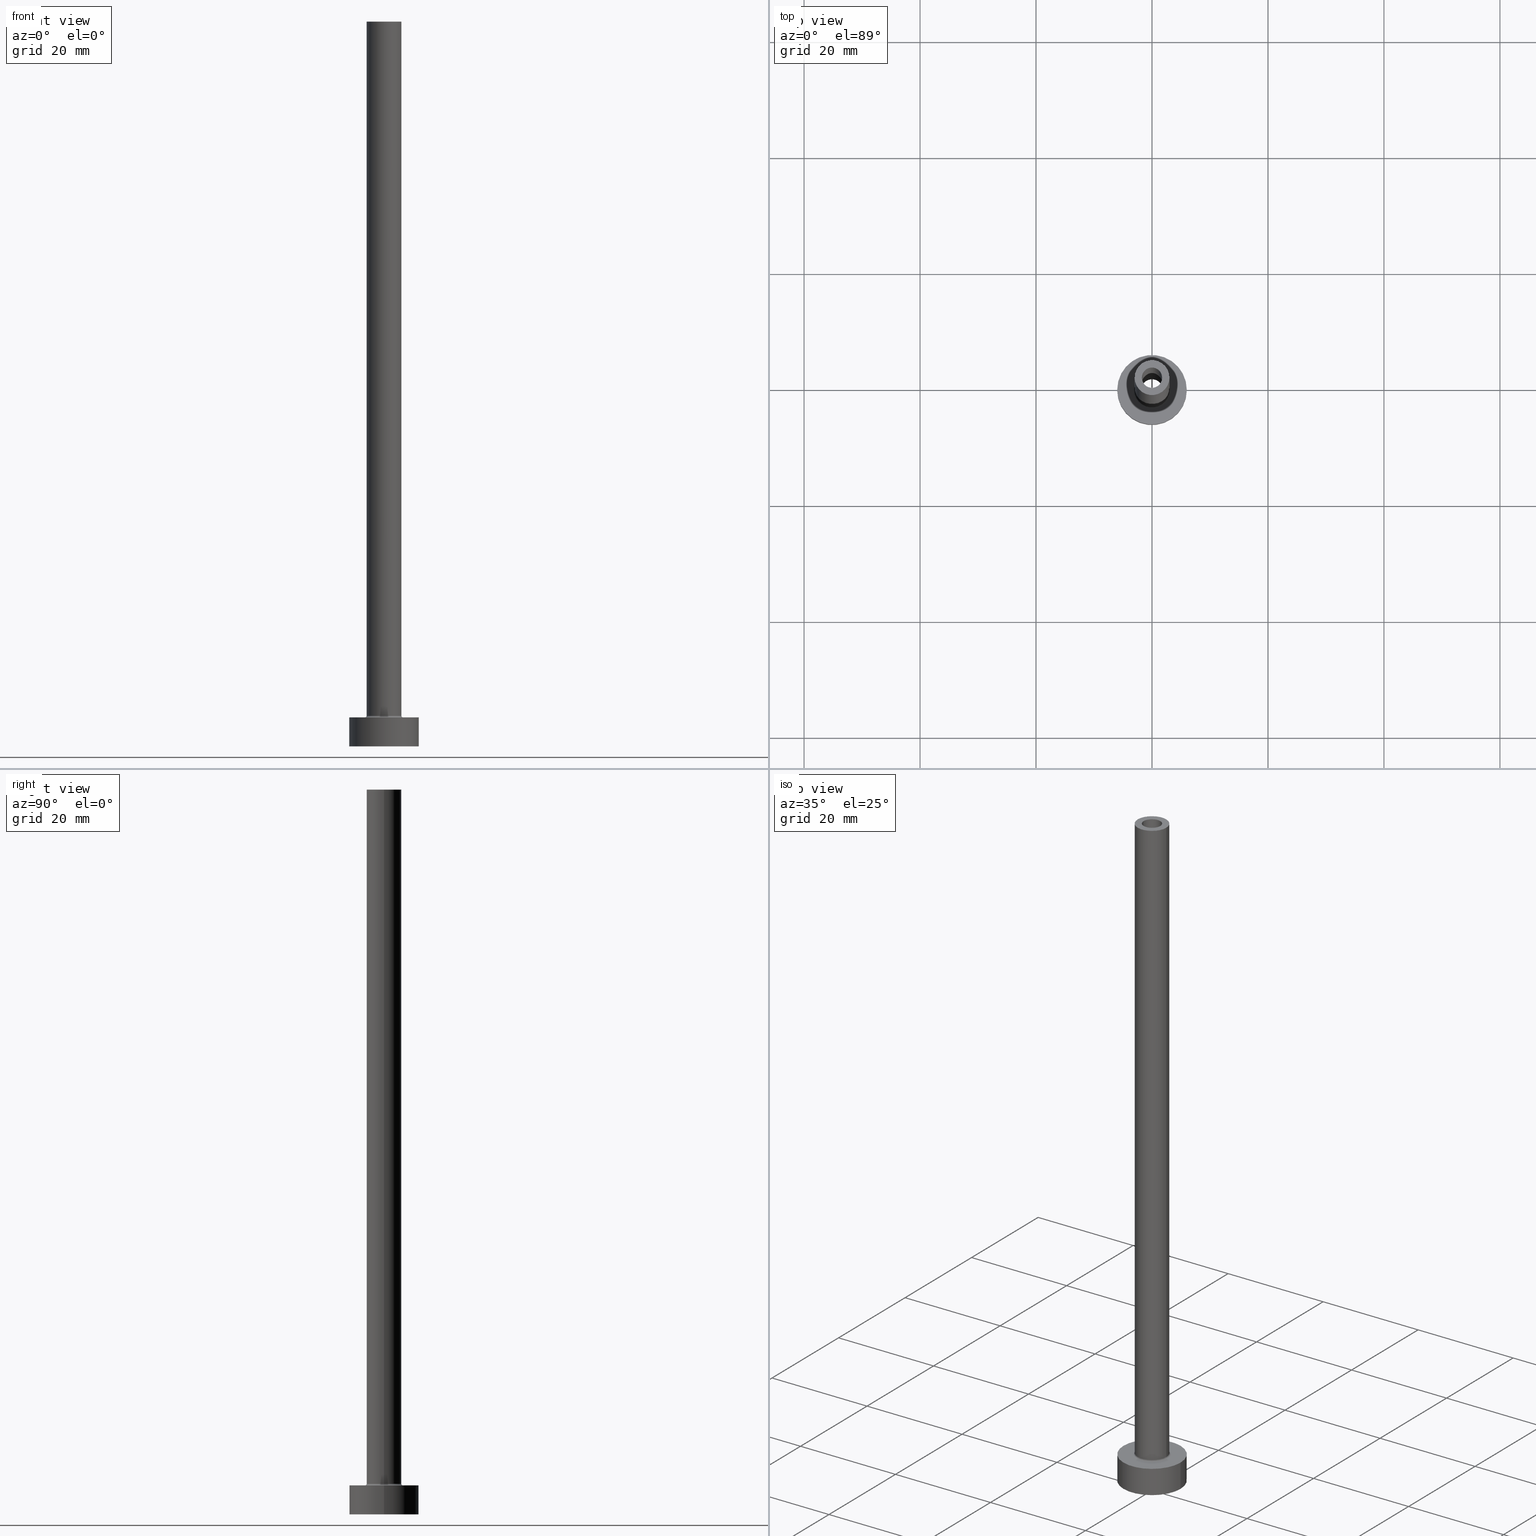
[diagram: canonical four-view strip — front | top / right | iso, engineering-drawing reading convention]
A machine part, canonical four-view strip (front | top / right | iso — engineering-drawing reading convention). The complete STEP part file that produces these views, byte-faithful:
ISO-10303-21;
HEADER;
FILE_DESCRIPTION (( 'STEP AP203' ),
    '1' );
FILE_NAME ('5ae8.STEP',
    '2023-02-13T12:01:20',
    ( '' ),
    ( '' ),
    'SwSTEP 2.0',
    'SolidWorks 2019',
    '' );
FILE_SCHEMA (( 'CONFIG_CONTROL_DESIGN' ));
ENDSEC;

DATA;
#1 =( LENGTH_UNIT ( ) NAMED_UNIT ( * ) SI_UNIT ( .MILLI., .METRE. ) );
#2 = DIRECTION ( 'NONE',  ( 0.000000000000000000, 0.000000000000000000, -1.000000000000000000 ) ) ;
#3 = CARTESIAN_POINT ( 'NONE',  ( -3.300000000000000266, 4.041334437186266003E-16, 4.999999999999999112 ) ) ;
#4 = ORIENTED_EDGE ( 'NONE', *, *, #292, .F. ) ;
#5 = DIRECTION ( 'NONE',  ( -1.000000000000000000, 0.000000000000000000, 0.000000000000000000 ) ) ;
#6 = CARTESIAN_POINT ( 'NONE',  ( 0.000000000000000000, 0.000000000000000000, 0.000000000000000000 ) ) ;
#7 = ADVANCED_FACE ( 'NONE', ( #446 ), #323, .F. ) ;
#8 = CYLINDRICAL_SURFACE ( 'NONE', #373, 6.000000000000000888 ) ;
#9 = DIRECTION ( 'NONE',  ( 1.000000000000000000, 0.000000000000000000, 0.000000000000000000 ) ) ;
#10 = CARTESIAN_POINT ( 'NONE',  ( 0.000000000000000000, 0.000000000000000000, 0.000000000000000000 ) ) ;
#11 = ORIENTED_EDGE ( 'NONE', *, *, #138, .F. ) ;
#12 = CIRCLE ( 'NONE', #125, 1.750000000000000000 ) ;
#13 = EDGE_CURVE ( 'NONE', #219, #251, #445, .T. ) ;
#14 = FACE_BOUND ( 'NONE', #183, .T. ) ;
#15 = CARTESIAN_POINT ( 'NONE',  ( -1.750000000000000000, 0.000000000000000000, 125.0000000000000000 ) ) ;
#16 = CIRCLE ( 'NONE', #215, 6.000000000000000888 ) ;
#17 = AXIS2_PLACEMENT_3D ( 'NONE', #387, #27, #202 ) ;
#18 = APPROVAL_DATE_TIME ( #89, #171 ) ;
#19 = EDGE_LOOP ( 'NONE', ( #4, #264, #448, #112 ) ) ;
#20 = APPROVAL ( #339, 'NEUR�EN�' ) ;
#21 = ORIENTED_EDGE ( 'NONE', *, *, #390, .F. ) ;
#22 = PERSON_AND_ORGANIZATION ( #139, #50 ) ;
#23 = ORIENTED_EDGE ( 'NONE', *, *, #33, .F. ) ;
#24 = AXIS2_PLACEMENT_3D ( 'NONE', #140, #276, #384 ) ;
#25 = CIRCLE ( 'NONE', #30, 0.2999999999999999334 ) ;
#26 = FACE_OUTER_BOUND ( 'NONE', #55, .T. ) ;
#27 = DIRECTION ( 'NONE',  ( 0.000000000000000000, 0.000000000000000000, -1.000000000000000000 ) ) ;
#28 = CARTESIAN_POINT ( 'NONE',  ( 6.000000000000000888, 7.347880794884120722E-16, 5.000000000000000000 ) ) ;
#29 = CIRCLE ( 'NONE', #52, 6.000000000000000888 ) ;
#30 = AXIS2_PLACEMENT_3D ( 'NONE', #203, #201, #423 ) ;
#31 = EDGE_LOOP ( 'NONE', ( #451, #454, #375, #267 ) ) ;
#32 = PLANE ( 'NONE',  #450 ) ;
#33 = EDGE_CURVE ( 'NONE', #328, #303, #73, .T. ) ;
#34 = ORIENTED_EDGE ( 'NONE', *, *, #115, .T. ) ;
#35 = DIRECTION ( 'NONE',  ( 0.000000000000000000, 0.000000000000000000, -1.000000000000000000 ) ) ;
#36 = ORIENTED_EDGE ( 'NONE', *, *, #416, .F. ) ;
#37 = VECTOR ( 'NONE', #241, 1000.000000000000000 ) ;
#38 = DIRECTION ( 'NONE',  ( 1.000000000000000000, 0.000000000000000000, 0.000000000000000000 ) ) ;
#39 =( GEOMETRIC_REPRESENTATION_CONTEXT ( 3 ) GLOBAL_UNCERTAINTY_ASSIGNED_CONTEXT ( ( #396 ) ) GLOBAL_UNIT_ASSIGNED_CONTEXT ( ( #1, #426, #336 ) ) REPRESENTATION_CONTEXT ( 'NONE', 'WORKASPACE' ) );
#40 = EDGE_CURVE ( 'NONE', #121, #258, #394, .T. ) ;
#41 = DIRECTION ( 'NONE',  ( 0.000000000000000000, 0.000000000000000000, 1.000000000000000000 ) ) ;
#42 = EDGE_LOOP ( 'NONE', ( #88, #11 ) ) ;
#43 = DIRECTION ( 'NONE',  ( 1.000000000000000000, 0.000000000000000000, 0.000000000000000000 ) ) ;
#44 = DIRECTION ( 'NONE',  ( 0.000000000000000000, 0.000000000000000000, 1.000000000000000000 ) ) ;
#45 = EDGE_LOOP ( 'NONE', ( #132, #402, #367, #36 ) ) ;
#46 = ADVANCED_FACE ( 'NONE', ( #14, #365 ), #216, .T. ) ;
#47 = ORIENTED_EDGE ( 'NONE', *, *, #428, .T. ) ;
#48 = AXIS2_PLACEMENT_3D ( 'NONE', #252, #145, #43 ) ;
#49 = DIRECTION ( 'NONE',  ( 1.000000000000000000, 0.000000000000000000, 0.000000000000000000 ) ) ;
#50 = ORGANIZATION ( 'NEUR�EN�', 'NEUR�EN�', '' ) ;
#51 = DIRECTION ( 'NONE',  ( -0.000000000000000000, -0.000000000000000000, -1.000000000000000000 ) ) ;
#52 = AXIS2_PLACEMENT_3D ( 'NONE', #420, #281, #61 ) ;
#53 = APPROVAL_PERSON_ORGANIZATION ( #322, #70, #204 ) ;
#54 = ORIENTED_EDGE ( 'NONE', *, *, #102, .F. ) ;
#55 = EDGE_LOOP ( 'NONE', ( #435, #294 ) ) ;
#56 = EDGE_CURVE ( 'NONE', #427, #195, #106, .T. ) ;
#57 = CARTESIAN_POINT ( 'NONE',  ( 0.000000000000000000, 0.000000000000000000, 80.00000000000000000 ) ) ;
#58 = AXIS2_PLACEMENT_3D ( 'NONE', #408, #80, #222 ) ;
#59 = DATE_TIME_ROLE ( 'creation_date' ) ;
#60 = DIRECTION ( 'NONE',  ( 1.000000000000000000, 0.000000000000000000, -0.000000000000000000 ) ) ;
#61 = DIRECTION ( 'NONE',  ( 1.000000000000000000, 0.000000000000000000, 0.000000000000000000 ) ) ;
#62 = CARTESIAN_POINT ( 'NONE',  ( 0.000000000000000000, 0.000000000000000000, 125.0000000000000000 ) ) ;
#63 = ORIENTED_EDGE ( 'NONE', *, *, #324, .T. ) ;
#64 = ADVANCED_FACE ( 'NONE', ( #405 ), #249, .F. ) ;
#65 = DIRECTION ( 'NONE',  ( 0.000000000000000000, 0.000000000000000000, 1.000000000000000000 ) ) ;
#66 = CIRCLE ( 'NONE', #332, 3.000000000000000444 ) ;
#67 = ORIENTED_EDGE ( 'NONE', *, *, #335, .F. ) ;
#68 = FACE_OUTER_BOUND ( 'NONE', #278, .T. ) ;
#69 = APPROVAL_DATE_TIME ( #277, #70 ) ;
#70 = APPROVAL ( #319, 'NEUR�EN�' ) ;
#71 = FACE_OUTER_BOUND ( 'NONE', #330, .T. ) ;
#72 = ORIENTED_EDGE ( 'NONE', *, *, #292, .T. ) ;
#73 = CIRCLE ( 'NONE', #272, 1.750000000000000000 ) ;
#74 = LOCAL_TIME ( 13, 1, 20.00000000000000000, #419 ) ;
#75 = FACE_OUTER_BOUND ( 'NONE', #45, .T. ) ;
#76 = DIRECTION ( 'NONE',  ( 1.000000000000000000, 0.000000000000000000, 0.000000000000000000 ) ) ;
#77 = ORIENTED_EDGE ( 'NONE', *, *, #403, .T. ) ;
#78 = CARTESIAN_POINT ( 'NONE',  ( -3.000000000000000444, 0.000000000000000000, 125.0000000000000000 ) ) ;
#79 = CARTESIAN_POINT ( 'NONE',  ( 0.000000000000000000, 0.000000000000000000, 125.0000000000000000 ) ) ;
#80 = DIRECTION ( 'NONE',  ( 0.000000000000000000, 0.000000000000000000, 1.000000000000000000 ) ) ;
#81 = AXIS2_PLACEMENT_3D ( 'NONE', #10, #327, #76 ) ;
#82 = AXIS2_PLACEMENT_3D ( 'NONE', #260, #83, #223 ) ;
#83 = DIRECTION ( 'NONE',  ( 0.000000000000000000, 0.000000000000000000, 1.000000000000000000 ) ) ;
#84 = DIRECTION ( 'NONE',  ( -0.000000000000000000, -0.000000000000000000, -1.000000000000000000 ) ) ;
#85 = ADVANCED_FACE ( 'NONE', ( #75 ), #399, .T. ) ;
#86 = ORIENTED_EDGE ( 'NONE', *, *, #208, .T. ) ;
#87 = CIRCLE ( 'NONE', #24, 6.000000000000000888 ) ;
#88 = ORIENTED_EDGE ( 'NONE', *, *, #324, .F. ) ;
#89 = DATE_AND_TIME ( #415, #157 ) ;
#90 = CC_DESIGN_DATE_AND_TIME_ASSIGNMENT ( #173, #430, ( #118 ) ) ;
#91 = EDGE_LOOP ( 'NONE', ( #176, #162 ) ) ;
#92 = DIRECTION ( 'NONE',  ( -0.000000000000000000, -0.000000000000000000, -1.000000000000000000 ) ) ;
#93 = CIRCLE ( 'NONE', #175, 6.000000000000000888 ) ;
#94 = LOCAL_TIME ( 13, 1, 20.00000000000000000, #243 ) ;
#95 = CARTESIAN_POINT ( 'NONE',  ( 0.000000000000000000, 0.000000000000000000, 5.000000000000000000 ) ) ;
#96 = EDGE_CURVE ( 'NONE', #328, #97, #449, .T. ) ;
#97 = VERTEX_POINT ( 'NONE', #374 ) ;
#98 = CARTESIAN_POINT ( 'NONE',  ( 0.000000000000000000, 0.000000000000000000, 0.000000000000000000 ) ) ;
#99 = CARTESIAN_POINT ( 'NONE',  ( 0.000000000000000000, 0.000000000000000000, 80.00000000000000000 ) ) ;
#100 = VECTOR ( 'NONE', #2, 1000.000000000000000 ) ;
#101 = EDGE_LOOP ( 'NONE', ( #63, #348, #77, #346 ) ) ;
#102 = EDGE_CURVE ( 'NONE', #97, #407, #117, .T. ) ;
#103 = DIRECTION ( 'NONE',  ( 0.000000000000000000, 0.000000000000000000, 1.000000000000000000 ) ) ;
#104 = PLANE ( 'NONE',  #151 ) ;
#105 = DIRECTION ( 'NONE',  ( -0.000000000000000000, -0.000000000000000000, -1.000000000000000000 ) ) ;
#106 = LINE ( 'NONE', #153, #214 ) ;
#107 = CARTESIAN_POINT ( 'NONE',  ( 0.000000000000000000, 0.000000000000000000, 5.299999999999998934 ) ) ;
#108 = CARTESIAN_POINT ( 'NONE',  ( 1.750000000000000000, 2.143131898507867804E-16, 80.00000000000000000 ) ) ;
#109 = AXIS2_PLACEMENT_3D ( 'NONE', #154, #213, #147 ) ;
#110 = APPLICATION_PROTOCOL_DEFINITION ( 'international standard', 'config_control_design', 1994, #308 ) ;
#111 = DIRECTION ( 'NONE',  ( -0.000000000000000000, -0.000000000000000000, -1.000000000000000000 ) ) ;
#112 = ORIENTED_EDGE ( 'NONE', *, *, #124, .F. ) ;
#113 = DIRECTION ( 'NONE',  ( 1.000000000000000000, 0.000000000000000000, 0.000000000000000000 ) ) ;
#114 = ORIENTED_EDGE ( 'NONE', *, *, #263, .T. ) ;
#115 = EDGE_CURVE ( 'NONE', #126, #412, #168, .T. ) ;
#116 = VERTEX_POINT ( 'NONE', #238 ) ;
#117 = CIRCLE ( 'NONE', #58, 1.750000000000000000 ) ;
#118 = SECURITY_CLASSIFICATION ( '', '', #194 ) ;
#119 = EDGE_CURVE ( 'NONE', #303, #407, #357, .T. ) ;
#120 = DATE_AND_TIME ( #386, #74 ) ;
#121 = VERTEX_POINT ( 'NONE', #321 ) ;
#122 = DIRECTION ( 'NONE',  ( 0.000000000000000000, 0.000000000000000000, 1.000000000000000000 ) ) ;
#123 = EDGE_LOOP ( 'NONE', ( #229, #320, #192, #72 ) ) ;
#124 = EDGE_CURVE ( 'NONE', #275, #412, #235, .T. ) ;
#125 = AXIS2_PLACEMENT_3D ( 'NONE', #301, #350, #383 ) ;
#126 = VERTEX_POINT ( 'NONE', #3 ) ;
#127 = APPROVAL_DATE_TIME ( #456, #20 ) ;
#128 = DIRECTION ( 'NONE',  ( 1.000000000000000000, 0.000000000000000000, -0.000000000000000000 ) ) ;
#129 = PRODUCT_DEFINITION_SHAPE ( 'NONE', 'NONE',  #246 ) ;
#130 = AXIS2_PLACEMENT_3D ( 'NONE', #309, #274, #271 ) ;
#131 = ADVANCED_FACE ( 'NONE', ( #68 ), #133, .T. ) ;
#132 = ORIENTED_EDGE ( 'NONE', *, *, #40, .F. ) ;
#133 = CYLINDRICAL_SURFACE ( 'NONE', #455, 6.000000000000000888 ) ;
#134 = DIRECTION ( 'NONE',  ( 0.000000000000000000, 0.000000000000000000, 1.000000000000000000 ) ) ;
#135 = VERTEX_POINT ( 'NONE', #136 ) ;
#136 = CARTESIAN_POINT ( 'NONE',  ( 6.000000000000000888, 7.347880794884120722E-16, 0.000000000000000000 ) ) ;
#137 = SHAPE_DEFINITION_REPRESENTATION ( #129, #361 ) ;
#138 = EDGE_CURVE ( 'NONE', #427, #219, #220, .T. ) ;
#139 = PERSON ( 'NEUR�EN�', 'NEUR�EN�', 'NEUR�EN�', ('NEUR�EN�'), ('NEUR�EN�'), ('NEUR�EN�') ) ;
#140 = CARTESIAN_POINT ( 'NONE',  ( 0.000000000000000000, 0.000000000000000000, 5.000000000000000000 ) ) ;
#141 = AXIS2_PLACEMENT_3D ( 'NONE', #6, #289, #113 ) ;
#142 = CC_DESIGN_APPROVAL ( #70, ( #118 ) ) ;
#143 = DIRECTION ( 'NONE',  ( 0.000000000000000000, 0.000000000000000000, 1.000000000000000000 ) ) ;
#144 = CARTESIAN_POINT ( 'NONE',  ( -6.000000000000000888, 0.000000000000000000, 5.000000000000000000 ) ) ;
#145 = DIRECTION ( 'NONE',  ( 0.000000000000000000, 0.000000000000000000, 1.000000000000000000 ) ) ;
#146 = DIRECTION ( 'NONE',  ( 0.000000000000000000, 0.000000000000000000, 1.000000000000000000 ) ) ;
#147 = DIRECTION ( 'NONE',  ( 1.000000000000000000, 0.000000000000000000, 0.000000000000000000 ) ) ;
#148 = CARTESIAN_POINT ( 'NONE',  ( 0.000000000000000000, 0.000000000000000000, 5.000000000000000000 ) ) ;
#149 = CARTESIAN_POINT ( 'NONE',  ( 0.000000000000000000, 0.000000000000000000, 5.299999999999998934 ) ) ;
#150 = DIRECTION ( 'NONE',  ( 0.000000000000000000, 0.000000000000000000, 1.000000000000000000 ) ) ;
#151 = AXIS2_PLACEMENT_3D ( 'NONE', #316, #44, #434 ) ;
#152 = AXIS2_PLACEMENT_3D ( 'NONE', #95, #310, #315 ) ;
#153 = CARTESIAN_POINT ( 'NONE',  ( 1.899999999999999911, 2.326828918379971365E-16, 85.37401153701776479 ) ) ;
#154 = CARTESIAN_POINT ( 'NONE',  ( 0.000000000000000000, 0.000000000000000000, 5.299999999999998934 ) ) ;
#155 = CC_DESIGN_PERSON_AND_ORGANIZATION_ASSIGNMENT ( #22, #161, ( #118 ) ) ;
#156 = AXIS2_PLACEMENT_3D ( 'NONE', #79, #51, #297 ) ;
#157 = LOCAL_TIME ( 13, 1, 20.00000000000000000, #345 ) ;
#158 = ORIENTED_EDGE ( 'NONE', *, *, #269, .T. ) ;
#159 = PERSON_AND_ORGANIZATION ( #139, #50 ) ;
#160 = EDGE_CURVE ( 'NONE', #280, #116, #198, .T. ) ;
#161 = PERSON_AND_ORGANIZATION_ROLE ( 'classification_officer' ) ;
#162 = ORIENTED_EDGE ( 'NONE', *, *, #390, .T. ) ;
#163 = CALENDAR_DATE ( 2023, 13, 2 ) ;
#164 = CARTESIAN_POINT ( 'NONE',  ( 0.000000000000000000, 0.000000000000000000, 0.000000000000000000 ) ) ;
#165 = CARTESIAN_POINT ( 'NONE',  ( -1.899999999999999911, 0.000000000000000000, 0.000000000000000000 ) ) ;
#166 = DIRECTION ( 'NONE',  ( 1.000000000000000000, 0.000000000000000000, 0.000000000000000000 ) ) ;
#167 = FACE_OUTER_BOUND ( 'NONE', #101, .T. ) ;
#168 = CIRCLE ( 'NONE', #325, 3.300000000000000266 ) ;
#169 = DIRECTION ( 'NONE',  ( -1.000000000000000000, 0.000000000000000000, 0.000000000000000000 ) ) ;
#170 = CYLINDRICAL_SURFACE ( 'NONE', #17, 1.750000000000000000 ) ;
#171 = APPROVAL ( #377, 'NEUR�EN�' ) ;
#172 = DIRECTION ( 'NONE',  ( -1.000000000000000000, 0.000000000000000000, 0.000000000000000000 ) ) ;
#173 = DATE_AND_TIME ( #232, #283 ) ;
#174 = CARTESIAN_POINT ( 'NONE',  ( 3.000000000000000444, 3.673940397442060361E-16, 5.299999999999998934 ) ) ;
#175 = AXIS2_PLACEMENT_3D ( 'NONE', #98, #318, #240 ) ;
#176 = ORIENTED_EDGE ( 'NONE', *, *, #102, .T. ) ;
#177 = CARTESIAN_POINT ( 'NONE',  ( 0.000000000000000000, 0.000000000000000000, 125.0000000000000000 ) ) ;
#178 = EDGE_LOOP ( 'NONE', ( #231, #190 ) ) ;
#179 = CARTESIAN_POINT ( 'NONE',  ( -3.000000000000000444, 0.000000000000000000, 5.299999999999998934 ) ) ;
#180 = ADVANCED_FACE ( 'NONE', ( #391, #425 ), #200, .F. ) ;
#181 = CARTESIAN_POINT ( 'NONE',  ( 0.000000000000000000, 0.000000000000000000, 85.37401153701776479 ) ) ;
#182 = AXIS2_PLACEMENT_3D ( 'NONE', #177, #433, #366 ) ;
#183 = EDGE_LOOP ( 'NONE', ( #23, #67 ) ) ;
#184 = EDGE_LOOP ( 'NONE', ( #431, #34 ) ) ;
#185 = ADVANCED_FACE ( 'NONE', ( #167 ), #211, .F. ) ;
#186 = CARTESIAN_POINT ( 'NONE',  ( 0.000000000000000000, 0.000000000000000000, 5.000000000000000000 ) ) ;
#187 = CARTESIAN_POINT ( 'NONE',  ( -1.750000000000000000, 0.000000000000000000, 125.0000000000000000 ) ) ;
#188 = ORIENTED_EDGE ( 'NONE', *, *, #124, .T. ) ;
#189 = AXIS2_PLACEMENT_3D ( 'NONE', #253, #146, #438 ) ;
#190 = ORIENTED_EDGE ( 'NONE', *, *, #403, .F. ) ;
#191 = PERSON_AND_ORGANIZATION ( #139, #50 ) ;
#192 = ORIENTED_EDGE ( 'NONE', *, *, #416, .T. ) ;
#193 = EDGE_CURVE ( 'NONE', #280, #244, #87, .T. ) ;
#194 = SECURITY_CLASSIFICATION_LEVEL ( 'unclassified' ) ;
#195 = VERTEX_POINT ( 'NONE', #360 ) ;
#196 = LINE ( 'NONE', #411, #265 ) ;
#197 = CIRCLE ( 'NONE', #259, 3.000000000000000444 ) ;
#198 = LINE ( 'NONE', #422, #37 ) ;
#199 = CC_DESIGN_PERSON_AND_ORGANIZATION_ASSIGNMENT ( #159, #270, ( #246 ) ) ;
#200 = PLANE ( 'NONE',  #459 ) ;
#201 = DIRECTION ( 'NONE',  ( 1.224646799147353207E-16, 1.000000000000000000, -0.000000000000000000 ) ) ;
#202 = DIRECTION ( 'NONE',  ( -1.000000000000000000, 0.000000000000000000, 0.000000000000000000 ) ) ;
#203 = CARTESIAN_POINT ( 'NONE',  ( -3.300000000000000266, 4.041334437186266003E-16, 5.299999999999998934 ) ) ;
#204 = APPROVAL_ROLE ( '' ) ;
#205 = EDGE_LOOP ( 'NONE', ( #311, #417, #54, #376 ) ) ;
#206 = DIRECTION ( 'NONE',  ( 1.000000000000000000, 0.000000000000000000, 0.000000000000000000 ) ) ;
#207 = AXIS2_PLACEMENT_3D ( 'NONE', #225, #122, #224 ) ;
#208 = EDGE_CURVE ( 'NONE', #135, #116, #29, .T. ) ;
#209 = ORIENTED_EDGE ( 'NONE', *, *, #40, .T. ) ;
#210 = DESIGN_CONTEXT ( 'detailed design', #308, 'design' ) ;
#211 = CYLINDRICAL_SURFACE ( 'NONE', #385, 1.899999999999999911 ) ;
#212 = DIRECTION ( 'NONE',  ( 0.000000000000000000, 0.000000000000000000, -1.000000000000000000 ) ) ;
#213 = DIRECTION ( 'NONE',  ( 0.000000000000000000, 0.000000000000000000, 1.000000000000000000 ) ) ;
#214 = VECTOR ( 'NONE', #247, 1000.000000000000000 ) ;
#215 = AXIS2_PLACEMENT_3D ( 'NONE', #393, #65, #206 ) ;
#216 = PLANE ( 'NONE',  #189 ) ;
#217 = ADVANCED_FACE ( 'NONE', ( #313, #26 ), #32, .F. ) ;
#218 = DIRECTION ( 'NONE',  ( -0.000000000000000000, -0.000000000000000000, -1.000000000000000000 ) ) ;
#219 = VERTEX_POINT ( 'NONE', #355 ) ;
#220 = CIRCLE ( 'NONE', #401, 1.899999999999999911 ) ;
#221 = CC_DESIGN_APPROVAL ( #171, ( #312 ) ) ;
#222 = DIRECTION ( 'NONE',  ( 1.000000000000000000, 0.000000000000000000, 0.000000000000000000 ) ) ;
#223 = DIRECTION ( 'NONE',  ( 1.000000000000000000, 0.000000000000000000, 0.000000000000000000 ) ) ;
#224 = DIRECTION ( 'NONE',  ( 1.000000000000000000, 0.000000000000000000, 0.000000000000000000 ) ) ;
#225 = CARTESIAN_POINT ( 'NONE',  ( 0.000000000000000000, 0.000000000000000000, 80.00000000000000000 ) ) ;
#226 = VECTOR ( 'NONE', #212, 1000.000000000000000 ) ;
#227 = VECTOR ( 'NONE', #257, 1000.000000000000000 ) ;
#228 = ADVANCED_FACE ( 'NONE', ( #237 ), #170, .F. ) ;
#229 = ORIENTED_EDGE ( 'NONE', *, *, #398, .F. ) ;
#230 = PERSON_AND_ORGANIZATION_ROLE ( 'creator' ) ;
#231 = ORIENTED_EDGE ( 'NONE', *, *, #410, .F. ) ;
#232 = CALENDAR_DATE ( 2023, 13, 2 ) ;
#233 = DIRECTION ( 'NONE',  ( 0.000000000000000000, 0.000000000000000000, 1.000000000000000000 ) ) ;
#234 = CC_DESIGN_DATE_AND_TIME_ASSIGNMENT ( #120, #59, ( #246 ) ) ;
#235 = CIRCLE ( 'NONE', #130, 0.2999999999999999334 ) ;
#236 = AXIS2_PLACEMENT_3D ( 'NONE', #356, #358, #169 ) ;
#237 = FACE_OUTER_BOUND ( 'NONE', #205, .T. ) ;
#238 = CARTESIAN_POINT ( 'NONE',  ( -6.000000000000000888, 0.000000000000000000, 0.000000000000000000 ) ) ;
#239 = EDGE_LOOP ( 'NONE', ( #424, #262, #188, #370 ) ) ;
#240 = DIRECTION ( 'NONE',  ( 1.000000000000000000, 0.000000000000000000, 0.000000000000000000 ) ) ;
#241 = DIRECTION ( 'NONE',  ( -0.000000000000000000, -0.000000000000000000, -1.000000000000000000 ) ) ;
#242 = CIRCLE ( 'NONE', #48, 1.750000000000000000 ) ;
#243 = COORDINATED_UNIVERSAL_TIME_OFFSET ( 1, 0, .AHEAD. ) ;
#244 = VERTEX_POINT ( 'NONE', #28 ) ;
#245 = FACE_OUTER_BOUND ( 'NONE', #19, .T. ) ;
#246 = PRODUCT_DEFINITION ( 'NEZN�M�', '', #312, #210 ) ;
#247 = DIRECTION ( 'NONE',  ( 0.000000000000000000, 0.000000000000000000, -1.000000000000000000 ) ) ;
#248 = CARTESIAN_POINT ( 'NONE',  ( 1.750000000000000000, 2.143131898507867804E-16, 125.0000000000000000 ) ) ;
#249 = TOROIDAL_SURFACE ( 'NONE', #368, 3.300000000000000266, 0.2999999999999999889 ) ;
#250 = DIRECTION ( 'NONE',  ( -1.000000000000000000, 0.000000000000000000, 0.000000000000000000 ) ) ;
#251 = VERTEX_POINT ( 'NONE', #165 ) ;
#252 = CARTESIAN_POINT ( 'NONE',  ( 0.000000000000000000, 0.000000000000000000, 80.00000000000000000 ) ) ;
#253 = CARTESIAN_POINT ( 'NONE',  ( 0.000000000000000000, 0.000000000000000000, 125.0000000000000000 ) ) ;
#254 = CC_DESIGN_PERSON_AND_ORGANIZATION_ASSIGNMENT ( #261, #295, ( #306 ) ) ;
#255 = FACE_OUTER_BOUND ( 'NONE', #123, .T. ) ;
#256 = ORIENTED_EDGE ( 'NONE', *, *, #335, .T. ) ;
#257 = DIRECTION ( 'NONE',  ( 0.000000000000000000, 0.000000000000000000, -1.000000000000000000 ) ) ;
#258 = VERTEX_POINT ( 'NONE', #461 ) ;
#259 = AXIS2_PLACEMENT_3D ( 'NONE', #62, #134, #166 ) ;
#260 = CARTESIAN_POINT ( 'NONE',  ( 0.000000000000000000, 0.000000000000000000, 0.000000000000000000 ) ) ;
#261 = PERSON_AND_ORGANIZATION ( #139, #50 ) ;
#262 = ORIENTED_EDGE ( 'NONE', *, *, #364, .F. ) ;
#263 = EDGE_CURVE ( 'NONE', #116, #135, #93, .T. ) ;
#264 = ORIENTED_EDGE ( 'NONE', *, *, #440, .T. ) ;
#265 = VECTOR ( 'NONE', #84, 1000.000000000000000 ) ;
#266 = APPROVAL_ROLE ( '' ) ;
#267 = ORIENTED_EDGE ( 'NONE', *, *, #410, .T. ) ;
#268 = COORDINATED_UNIVERSAL_TIME_OFFSET ( 1, 0, .AHEAD. ) ;
#269 = EDGE_CURVE ( 'NONE', #244, #280, #16, .T. ) ;
#270 = PERSON_AND_ORGANIZATION_ROLE ( 'creator' ) ;
#271 = DIRECTION ( 'NONE',  ( 0.000000000000000000, 0.000000000000000000, -1.000000000000000000 ) ) ;
#272 = AXIS2_PLACEMENT_3D ( 'NONE', #326, #143, #9 ) ;
#273 = CC_DESIGN_SECURITY_CLASSIFICATION ( #118, ( #312 ) ) ;
#274 = DIRECTION ( 'NONE',  ( 0.000000000000000000, -1.000000000000000000, 0.000000000000000000 ) ) ;
#275 = VERTEX_POINT ( 'NONE', #174 ) ;
#276 = DIRECTION ( 'NONE',  ( 0.000000000000000000, 0.000000000000000000, 1.000000000000000000 ) ) ;
#277 = DATE_AND_TIME ( #389, #94 ) ;
#278 = EDGE_LOOP ( 'NONE', ( #362, #333, #317, #114 ) ) ;
#279 = CARTESIAN_POINT ( 'NONE',  ( 1.750000000000000000, 2.143131898507867804E-16, 125.0000000000000000 ) ) ;
#280 = VERTEX_POINT ( 'NONE', #144 ) ;
#281 = DIRECTION ( 'NONE',  ( 0.000000000000000000, 0.000000000000000000, 1.000000000000000000 ) ) ;
#282 = CIRCLE ( 'NONE', #81, 1.899999999999999911 ) ;
#283 = LOCAL_TIME ( 13, 1, 20.00000000000000000, #268 ) ;
#284 = PERSON_AND_ORGANIZATION ( #139, #50 ) ;
#285 = CARTESIAN_POINT ( 'NONE',  ( 0.000000000000000000, 0.000000000000000000, 125.0000000000000000 ) ) ;
#286 = FACE_BOUND ( 'NONE', #184, .T. ) ;
#287 = ADVANCED_FACE ( 'NONE', ( #245 ), #343, .F. ) ;
#288 = CARTESIAN_POINT ( 'NONE',  ( -1.899999999999999911, 0.000000000000000000, 85.37401153701776479 ) ) ;
#289 = DIRECTION ( 'NONE',  ( -0.000000000000000000, -0.000000000000000000, -1.000000000000000000 ) ) ;
#290 = DIRECTION ( 'NONE',  ( 0.000000000000000000, 0.000000000000000000, 1.000000000000000000 ) ) ;
#291 = CARTESIAN_POINT ( 'NONE',  ( 3.000000000000000444, 3.673940397442060361E-16, 125.0000000000000000 ) ) ;
#292 = EDGE_CURVE ( 'NONE', #380, #275, #443, .T. ) ;
#293 = APPLICATION_CONTEXT ( 'configuration controlled 3d designs of mechanical parts and assemblies' ) ;
#294 = ORIENTED_EDGE ( 'NONE', *, *, #208, .F. ) ;
#295 = PERSON_AND_ORGANIZATION_ROLE ( 'design_owner' ) ;
#296 = EDGE_LOOP ( 'NONE', ( #413, #256, #382, #21 ) ) ;
#297 = DIRECTION ( 'NONE',  ( -1.000000000000000000, 0.000000000000000000, 0.000000000000000000 ) ) ;
#298 = AXIS2_PLACEMENT_3D ( 'NONE', #285, #103, #38 ) ;
#299 = APPROVAL_PERSON_ORGANIZATION ( #341, #171, #266 ) ;
#300 = MECHANICAL_CONTEXT ( 'NONE', #293, 'mechanical' ) ;
#301 = CARTESIAN_POINT ( 'NONE',  ( 0.000000000000000000, 0.000000000000000000, 125.0000000000000000 ) ) ;
#302 = EDGE_LOOP ( 'NONE', ( #400, #158 ) ) ;
#303 = VERTEX_POINT ( 'NONE', #248 ) ;
#304 = VECTOR ( 'NONE', #105, 1000.000000000000000 ) ;
#305 = ADVANCED_FACE ( 'NONE', ( #286, #436 ), #104, .T. ) ;
#306 = PRODUCT ( '5ae8', '5ae8', '', ( #300 ) ) ;
#307 = DIRECTION ( 'NONE',  ( 0.000000000000000000, 0.000000000000000000, 1.000000000000000000 ) ) ;
#308 = APPLICATION_CONTEXT ( 'configuration controlled 3d designs of mechanical parts and assemblies' ) ;
#309 = CARTESIAN_POINT ( 'NONE',  ( 3.300000000000000266, 0.000000000000000000, 5.299999999999998934 ) ) ;
#310 = DIRECTION ( 'NONE',  ( -0.000000000000000000, -0.000000000000000000, -1.000000000000000000 ) ) ;
#311 = ORIENTED_EDGE ( 'NONE', *, *, #33, .T. ) ;
#312 = PRODUCT_DEFINITION_FORMATION_WITH_SPECIFIED_SOURCE ( 'LIBOVOLN�', '', #306, .NOT_KNOWN. ) ;
#313 = FACE_BOUND ( 'NONE', #178, .T. ) ;
#314 = ADVANCED_FACE ( 'NONE', ( #71 ), #8, .T. ) ;
#315 = DIRECTION ( 'NONE',  ( 1.000000000000000000, 0.000000000000000000, 0.000000000000000000 ) ) ;
#316 = CARTESIAN_POINT ( 'NONE',  ( 0.000000000000000000, 0.000000000000000000, 5.000000000000000000 ) ) ;
#317 = ORIENTED_EDGE ( 'NONE', *, *, #160, .T. ) ;
#318 = DIRECTION ( 'NONE',  ( 0.000000000000000000, 0.000000000000000000, 1.000000000000000000 ) ) ;
#319 = APPROVAL_STATUS ( 'not_yet_approved' ) ;
#320 = ORIENTED_EDGE ( 'NONE', *, *, #428, .F. ) ;
#321 = CARTESIAN_POINT ( 'NONE',  ( 3.000000000000000444, 3.673940397442060361E-16, 125.0000000000000000 ) ) ;
#322 = PERSON_AND_ORGANIZATION ( #139, #50 ) ;
#323 = CYLINDRICAL_SURFACE ( 'NONE', #378, 1.899999999999999911 ) ;
#324 = EDGE_CURVE ( 'NONE', #219, #427, #414, .T. ) ;
#325 = AXIS2_PLACEMENT_3D ( 'NONE', #186, #338, #397 ) ;
#326 = CARTESIAN_POINT ( 'NONE',  ( 0.000000000000000000, 0.000000000000000000, 125.0000000000000000 ) ) ;
#327 = DIRECTION ( 'NONE',  ( -0.000000000000000000, -0.000000000000000000, -1.000000000000000000 ) ) ;
#328 = VERTEX_POINT ( 'NONE', #187 ) ;
#329 = CARTESIAN_POINT ( 'NONE',  ( 0.000000000000000000, 0.000000000000000000, 5.299999999999998934 ) ) ;
#330 = EDGE_LOOP ( 'NONE', ( #395, #452, #86, #351 ) ) ;
#331 = DIRECTION ( 'NONE',  ( 1.000000000000000000, 0.000000000000000000, 0.000000000000000000 ) ) ;
#332 = AXIS2_PLACEMENT_3D ( 'NONE', #329, #41, #331 ) ;
#333 = ORIENTED_EDGE ( 'NONE', *, *, #193, .F. ) ;
#334 = LOCAL_TIME ( 13, 1, 20.00000000000000000, #379 ) ;
#335 = EDGE_CURVE ( 'NONE', #303, #328, #12, .T. ) ;
#336 =( NAMED_UNIT ( * ) SI_UNIT ( $, .STERADIAN. ) SOLID_ANGLE_UNIT ( ) );
#337 = DIRECTION ( 'NONE',  ( 0.000000000000000000, 0.000000000000000000, -1.000000000000000000 ) ) ;
#338 = DIRECTION ( 'NONE',  ( -0.000000000000000000, -0.000000000000000000, -1.000000000000000000 ) ) ;
#339 = APPROVAL_STATUS ( 'not_yet_approved' ) ;
#340 = APPLICATION_PROTOCOL_DEFINITION ( 'international standard', 'config_control_design', 1994, #293 ) ;
#341 = PERSON_AND_ORGANIZATION ( #139, #50 ) ;
#342 = CC_DESIGN_PERSON_AND_ORGANIZATION_ASSIGNMENT ( #347, #381, ( #312 ) ) ;
#343 = TOROIDAL_SURFACE ( 'NONE', #109, 3.300000000000000266, 0.2999999999999999889 ) ;
#344 = CIRCLE ( 'NONE', #152, 3.300000000000000266 ) ;
#345 = COORDINATED_UNIVERSAL_TIME_OFFSET ( 1, 0, .AHEAD. ) ;
#346 = ORIENTED_EDGE ( 'NONE', *, *, #13, .F. ) ;
#347 = PERSON_AND_ORGANIZATION ( #139, #50 ) ;
#348 = ORIENTED_EDGE ( 'NONE', *, *, #56, .T. ) ;
#349 = EDGE_CURVE ( 'NONE', #244, #135, #196, .T. ) ;
#350 = DIRECTION ( 'NONE',  ( 0.000000000000000000, 0.000000000000000000, 1.000000000000000000 ) ) ;
#351 = ORIENTED_EDGE ( 'NONE', *, *, #160, .F. ) ;
#352 = CLOSED_SHELL ( 'NONE', ( #228, #185, #287, #85, #314, #131, #305, #217, #372, #46, #64, #7, #180, #447 ) ) ;
#353 = CIRCLE ( 'NONE', #141, 1.899999999999999911 ) ;
#354 = DIRECTION ( 'NONE',  ( 0.000000000000000000, 0.000000000000000000, 1.000000000000000000 ) ) ;
#355 = CARTESIAN_POINT ( 'NONE',  ( -1.899999999999999911, 0.000000000000000000, 80.00000000000000000 ) ) ;
#356 = CARTESIAN_POINT ( 'NONE',  ( 0.000000000000000000, 0.000000000000000000, 125.0000000000000000 ) ) ;
#357 = LINE ( 'NONE', #279, #100 ) ;
#358 = DIRECTION ( 'NONE',  ( 0.000000000000000000, 0.000000000000000000, -1.000000000000000000 ) ) ;
#359 = AXIS2_PLACEMENT_3D ( 'NONE', #107, #150, #49 ) ;
#360 = CARTESIAN_POINT ( 'NONE',  ( 1.899999999999999911, 2.326828918379971365E-16, 0.000000000000000000 ) ) ;
#361 = ADVANCED_BREP_SHAPE_REPRESENTATION ( '5ae8', ( #418, #82 ), #39 ) ;
#362 = ORIENTED_EDGE ( 'NONE', *, *, #349, .F. ) ;
#363 = CARTESIAN_POINT ( 'NONE',  ( 0.000000000000000000, 0.000000000000000000, 85.37401153701776479 ) ) ;
#364 = EDGE_CURVE ( 'NONE', #275, #380, #66, .T. ) ;
#365 = FACE_OUTER_BOUND ( 'NONE', #460, .T. ) ;
#366 = DIRECTION ( 'NONE',  ( -1.000000000000000000, 0.000000000000000000, 0.000000000000000000 ) ) ;
#367 = ORIENTED_EDGE ( 'NONE', *, *, #364, .T. ) ;
#368 = AXIS2_PLACEMENT_3D ( 'NONE', #149, #290, #442 ) ;
#369 = APPROVAL_PERSON_ORGANIZATION ( #284, #20, #441 ) ;
#370 = ORIENTED_EDGE ( 'NONE', *, *, #115, .F. ) ;
#371 = CARTESIAN_POINT ( 'NONE',  ( 1.899999999999999911, 2.326828918379971365E-16, 80.00000000000000000 ) ) ;
#372 = ADVANCED_FACE ( 'NONE', ( #255 ), #406, .T. ) ;
#373 = AXIS2_PLACEMENT_3D ( 'NONE', #148, #111, #250 ) ;
#374 = CARTESIAN_POINT ( 'NONE',  ( -1.750000000000000000, 0.000000000000000000, 80.00000000000000000 ) ) ;
#375 = ORIENTED_EDGE ( 'NONE', *, *, #13, .T. ) ;
#376 = ORIENTED_EDGE ( 'NONE', *, *, #96, .F. ) ;
#377 = APPROVAL_STATUS ( 'not_yet_approved' ) ;
#378 = AXIS2_PLACEMENT_3D ( 'NONE', #181, #337, #5 ) ;
#379 = COORDINATED_UNIVERSAL_TIME_OFFSET ( 1, 0, .AHEAD. ) ;
#380 = VERTEX_POINT ( 'NONE', #179 ) ;
#381 = PERSON_AND_ORGANIZATION_ROLE ( 'design_supplier' ) ;
#382 = ORIENTED_EDGE ( 'NONE', *, *, #96, .T. ) ;
#383 = DIRECTION ( 'NONE',  ( 1.000000000000000000, 0.000000000000000000, 0.000000000000000000 ) ) ;
#384 = DIRECTION ( 'NONE',  ( 1.000000000000000000, 0.000000000000000000, 0.000000000000000000 ) ) ;
#385 = AXIS2_PLACEMENT_3D ( 'NONE', #363, #35, #172 ) ;
#386 = CALENDAR_DATE ( 2023, 13, 2 ) ;
#387 = CARTESIAN_POINT ( 'NONE',  ( 0.000000000000000000, 0.000000000000000000, 125.0000000000000000 ) ) ;
#388 = CYLINDRICAL_SURFACE ( 'NONE', #236, 1.750000000000000000 ) ;
#389 = CALENDAR_DATE ( 2023, 13, 2 ) ;
#390 = EDGE_CURVE ( 'NONE', #407, #97, #242, .T. ) ;
#391 = FACE_BOUND ( 'NONE', #91, .T. ) ;
#392 = FACE_OUTER_BOUND ( 'NONE', #296, .T. ) ;
#393 = CARTESIAN_POINT ( 'NONE',  ( 0.000000000000000000, 0.000000000000000000, 5.000000000000000000 ) ) ;
#394 = CIRCLE ( 'NONE', #298, 3.000000000000000444 ) ;
#395 = ORIENTED_EDGE ( 'NONE', *, *, #269, .F. ) ;
#396 = UNCERTAINTY_MEASURE_WITH_UNIT (LENGTH_MEASURE( 1.000000000000000082E-05 ), #1, 'distance_accuracy_value', 'NONE');
#397 = DIRECTION ( 'NONE',  ( 1.000000000000000000, 0.000000000000000000, 0.000000000000000000 ) ) ;
#398 = EDGE_CURVE ( 'NONE', #121, #275, #437, .T. ) ;
#399 = CYLINDRICAL_SURFACE ( 'NONE', #156, 3.000000000000000444 ) ;
#400 = ORIENTED_EDGE ( 'NONE', *, *, #193, .T. ) ;
#401 = AXIS2_PLACEMENT_3D ( 'NONE', #99, #233, #458 ) ;
#402 = ORIENTED_EDGE ( 'NONE', *, *, #398, .T. ) ;
#403 = EDGE_CURVE ( 'NONE', #195, #251, #282, .T. ) ;
#404 = LINE ( 'NONE', #78, #409 ) ;
#405 = FACE_OUTER_BOUND ( 'NONE', #239, .T. ) ;
#406 = CYLINDRICAL_SURFACE ( 'NONE', #182, 3.000000000000000444 ) ;
#407 = VERTEX_POINT ( 'NONE', #108 ) ;
#408 = CARTESIAN_POINT ( 'NONE',  ( 0.000000000000000000, 0.000000000000000000, 80.00000000000000000 ) ) ;
#409 = VECTOR ( 'NONE', #218, 1000.000000000000000 ) ;
#410 = EDGE_CURVE ( 'NONE', #251, #195, #353, .T. ) ;
#411 = CARTESIAN_POINT ( 'NONE',  ( 6.000000000000000888, 7.347880794884120722E-16, 5.000000000000000000 ) ) ;
#412 = VERTEX_POINT ( 'NONE', #439 ) ;
#413 = ORIENTED_EDGE ( 'NONE', *, *, #119, .F. ) ;
#414 = CIRCLE ( 'NONE', #207, 1.899999999999999911 ) ;
#415 = CALENDAR_DATE ( 2023, 13, 2 ) ;
#416 = EDGE_CURVE ( 'NONE', #258, #380, #404, .T. ) ;
#417 = ORIENTED_EDGE ( 'NONE', *, *, #119, .T. ) ;
#418 = MANIFOLD_SOLID_BREP ( 'Odebrat vysunut�m4', #352 ) ;
#419 = COORDINATED_UNIVERSAL_TIME_OFFSET ( 1, 0, .AHEAD. ) ;
#420 = CARTESIAN_POINT ( 'NONE',  ( 0.000000000000000000, 0.000000000000000000, 0.000000000000000000 ) ) ;
#421 = CC_DESIGN_PERSON_AND_ORGANIZATION_ASSIGNMENT ( #191, #230, ( #312 ) ) ;
#422 = CARTESIAN_POINT ( 'NONE',  ( -6.000000000000000888, 0.000000000000000000, 5.000000000000000000 ) ) ;
#423 = DIRECTION ( 'NONE',  ( -1.000000000000000000, 1.224646799147353207E-16, 0.000000000000000000 ) ) ;
#424 = ORIENTED_EDGE ( 'NONE', *, *, #440, .F. ) ;
#425 = FACE_OUTER_BOUND ( 'NONE', #42, .T. ) ;
#426 =( NAMED_UNIT ( * ) PLANE_ANGLE_UNIT ( ) SI_UNIT ( $, .RADIAN. ) );
#427 = VERTEX_POINT ( 'NONE', #371 ) ;
#428 = EDGE_CURVE ( 'NONE', #258, #121, #197, .T. ) ;
#429 = DIRECTION ( 'NONE',  ( -1.000000000000000000, 0.000000000000000000, 0.000000000000000000 ) ) ;
#430 = DATE_TIME_ROLE ( 'classification_date' ) ;
#431 = ORIENTED_EDGE ( 'NONE', *, *, #453, .T. ) ;
#432 = CARTESIAN_POINT ( 'NONE',  ( 0.000000000000000000, 0.000000000000000000, 5.000000000000000000 ) ) ;
#433 = DIRECTION ( 'NONE',  ( -0.000000000000000000, -0.000000000000000000, -1.000000000000000000 ) ) ;
#434 = DIRECTION ( 'NONE',  ( 1.000000000000000000, 0.000000000000000000, -0.000000000000000000 ) ) ;
#435 = ORIENTED_EDGE ( 'NONE', *, *, #263, .F. ) ;
#436 = FACE_OUTER_BOUND ( 'NONE', #302, .T. ) ;
#437 = LINE ( 'NONE', #291, #304 ) ;
#438 = DIRECTION ( 'NONE',  ( 1.000000000000000000, 0.000000000000000000, -0.000000000000000000 ) ) ;
#439 = CARTESIAN_POINT ( 'NONE',  ( 3.300000000000000266, 0.000000000000000000, 4.999999999999999112 ) ) ;
#440 = EDGE_CURVE ( 'NONE', #380, #126, #25, .T. ) ;
#441 = APPROVAL_ROLE ( '' ) ;
#442 = DIRECTION ( 'NONE',  ( 1.000000000000000000, 0.000000000000000000, 0.000000000000000000 ) ) ;
#443 = CIRCLE ( 'NONE', #359, 3.000000000000000444 ) ;
#444 = CC_DESIGN_APPROVAL ( #20, ( #246 ) ) ;
#445 = LINE ( 'NONE', #288, #226 ) ;
#446 = FACE_OUTER_BOUND ( 'NONE', #31, .T. ) ;
#447 = ADVANCED_FACE ( 'NONE', ( #392 ), #388, .F. ) ;
#448 = ORIENTED_EDGE ( 'NONE', *, *, #453, .F. ) ;
#449 = LINE ( 'NONE', #15, #227 ) ;
#450 = AXIS2_PLACEMENT_3D ( 'NONE', #164, #307, #128 ) ;
#451 = ORIENTED_EDGE ( 'NONE', *, *, #56, .F. ) ;
#452 = ORIENTED_EDGE ( 'NONE', *, *, #349, .T. ) ;
#453 = EDGE_CURVE ( 'NONE', #412, #126, #344, .T. ) ;
#454 = ORIENTED_EDGE ( 'NONE', *, *, #138, .T. ) ;
#455 = AXIS2_PLACEMENT_3D ( 'NONE', #432, #92, #429 ) ;
#456 = DATE_AND_TIME ( #163, #334 ) ;
#457 = PRODUCT_RELATED_PRODUCT_CATEGORY ( 'detail', '', ( #306 ) ) ;
#458 = DIRECTION ( 'NONE',  ( 1.000000000000000000, 0.000000000000000000, 0.000000000000000000 ) ) ;
#459 = AXIS2_PLACEMENT_3D ( 'NONE', #57, #354, #60 ) ;
#460 = EDGE_LOOP ( 'NONE', ( #47, #209 ) ) ;
#461 = CARTESIAN_POINT ( 'NONE',  ( -3.000000000000000444, 0.000000000000000000, 125.0000000000000000 ) ) ;
ENDSEC;
END-ISO-10303-21;
